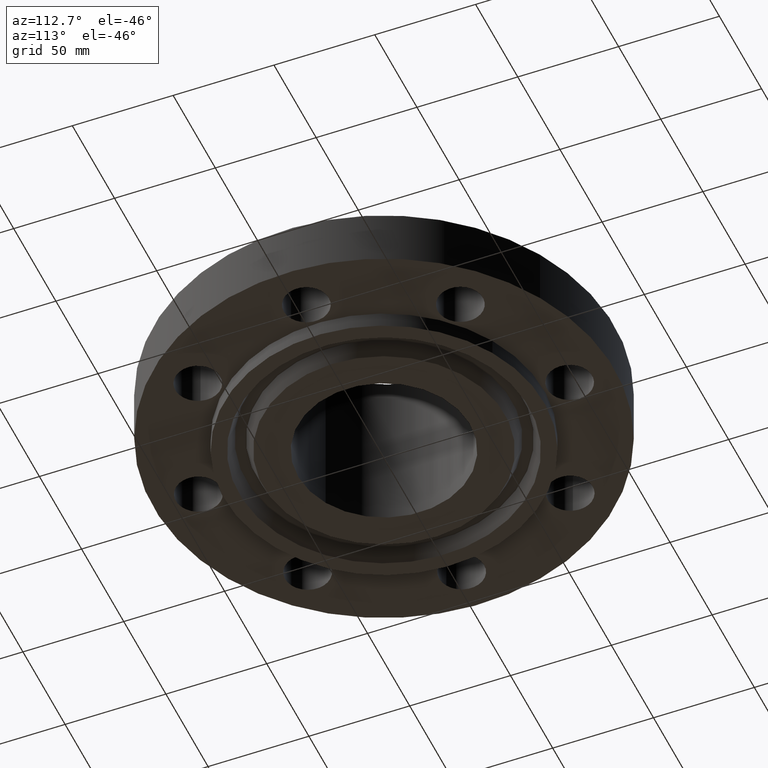
[diagram: clean part render]
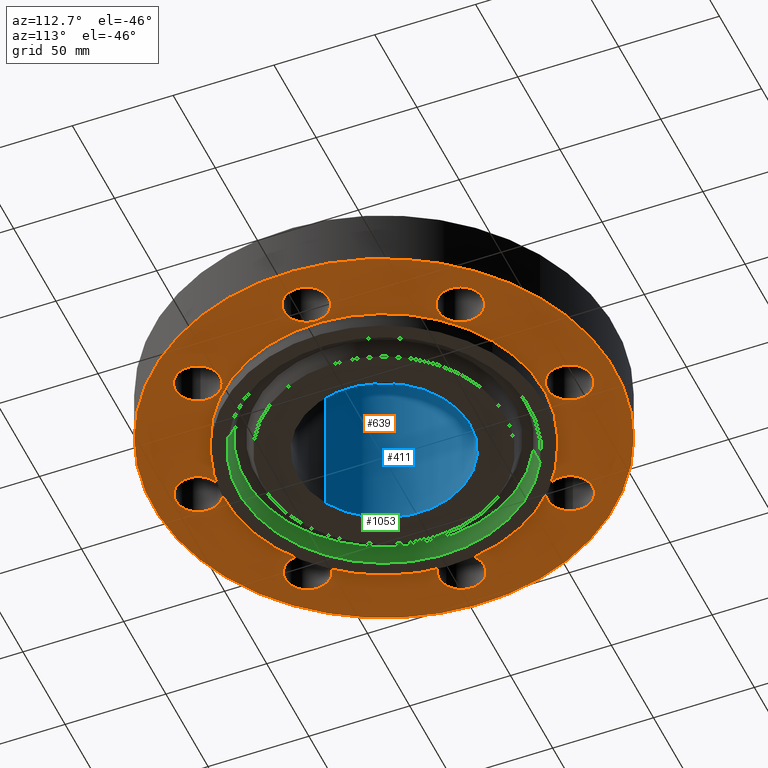
[diagram: same view with three faces highlighted in distinct colors, each labeled with its STEP entity id]
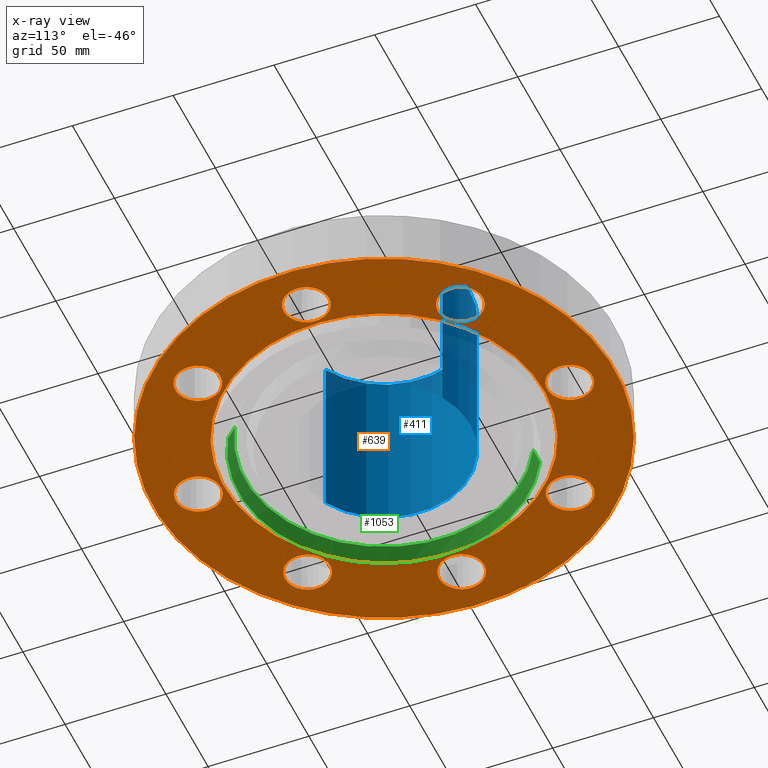
[diagram: x-ray of the same camera — body ghosted, the three highlighted faces saturated]
A machine part, auxiliary view with three faces highlighted in distinct colors.
The next image is the same camera in x-ray (body ghosted, the three faces saturated) — at least one of them is partly hidden behind the body in this view.
Their STEP definitions:

[orange] entity #639 — the highlighted planar face has unit normal (0, 0, -1).
#51=AXIS2_PLACEMENT_3D('Circle Axis2P3D',#49,#50,$) ;
#85=AXIS2_PLACEMENT_3D('Circle Axis2P3D',#83,#84,$) ;
#114=AXIS2_PLACEMENT_3D('Circle Axis2P3D',#112,#113,$) ;
#149=AXIS2_PLACEMENT_3D('Circle Axis2P3D',#147,#148,$) ;
#462=AXIS2_PLACEMENT_3D('Circle Axis2P3D',#460,#461,$) ;
#486=AXIS2_PLACEMENT_3D('Circle Axis2P3D',#484,#485,$) ;
#499=AXIS2_PLACEMENT_3D('Plane Axis2P3D',#496,#497,#498) ;
#515=AXIS2_PLACEMENT_3D('Circle Axis2P3D',#513,#514,$) ;
#524=AXIS2_PLACEMENT_3D('Circle Axis2P3D',#522,#523,$) ;
#533=AXIS2_PLACEMENT_3D('Circle Axis2P3D',#531,#532,$) ;
#542=AXIS2_PLACEMENT_3D('Circle Axis2P3D',#540,#541,$) ;
#551=AXIS2_PLACEMENT_3D('Circle Axis2P3D',#549,#550,$) ;
#560=AXIS2_PLACEMENT_3D('Circle Axis2P3D',#558,#559,$) ;
#569=AXIS2_PLACEMENT_3D('Circle Axis2P3D',#567,#568,$) ;
#578=AXIS2_PLACEMENT_3D('Circle Axis2P3D',#576,#577,$) ;
#587=AXIS2_PLACEMENT_3D('Circle Axis2P3D',#585,#586,$) ;
#596=AXIS2_PLACEMENT_3D('Circle Axis2P3D',#594,#595,$) ;
#605=AXIS2_PLACEMENT_3D('Circle Axis2P3D',#603,#604,$) ;
#614=AXIS2_PLACEMENT_3D('Circle Axis2P3D',#612,#613,$) ;
#623=AXIS2_PLACEMENT_3D('Circle Axis2P3D',#621,#622,$) ;
#632=AXIS2_PLACEMENT_3D('Circle Axis2P3D',#630,#631,$) ;
#44=CARTESIAN_POINT('Vertex',(-0.386136327233,3.835947237,0.)) ;
#49=CARTESIAN_POINT('Axis2P3D Location',(0.,3.62500000001,0.)) ;
#53=CARTESIAN_POINT('Vertex',(0.386136327233,3.41405276303,0.)) ;
#83=CARTESIAN_POINT('Axis2P3D Location',(0.,3.62500000001,0.)) ;
#112=CARTESIAN_POINT('Axis2P3D Location',(0.,0.,2.79741234551E-016)) ;
#116=CARTESIAN_POINT('Vertex',(-2.15741492373,-3.94912152852,2.79741234551E-016)) ;
#118=CARTESIAN_POINT('Vertex',(2.15741492373,3.94912152852,2.79741234551E-016)) ;
#147=CARTESIAN_POINT('Axis2P3D Location',(0.,0.,2.79741234551E-016)) ;
#457=CARTESIAN_POINT('Vertex',(-1.49820480814,-2.74244550592,0.)) ;
#460=CARTESIAN_POINT('Axis2P3D Location',(0.,0.,2.79741234551E-016)) ;
#464=CARTESIAN_POINT('Vertex',(1.49820480814,2.74244550592,0.)) ;
#484=CARTESIAN_POINT('Axis2P3D Location',(0.,0.,2.79741234551E-016)) ;
#496=CARTESIAN_POINT('Axis2P3D Location',(0.,3.12500000001,0.)) ;
#513=CARTESIAN_POINT('Axis2P3D Location',(2.56326208181,2.56326208181,0.)) ;
#517=CARTESIAN_POINT('Vertex',(2.43938468811,2.98546391901,0.)) ;
#519=CARTESIAN_POINT('Vertex',(2.68713947551,2.14106024462,0.)) ;
#522=CARTESIAN_POINT('Axis2P3D Location',(2.56326208181,2.56326208181,0.)) ;
#531=CARTESIAN_POINT('Axis2P3D Location',(3.62500000001,0.,0.)) ;
#535=CARTESIAN_POINT('Vertex',(3.835947237,0.386136327233,0.)) ;
#537=CARTESIAN_POINT('Vertex',(3.41405276303,-0.386136327233,0.)) ;
#540=CARTESIAN_POINT('Axis2P3D Location',(3.62500000001,0.,0.)) ;
#549=CARTESIAN_POINT('Axis2P3D Location',(2.56326208181,-2.56326208181,0.)) ;
#553=CARTESIAN_POINT('Vertex',(2.98546391901,-2.43938468811,0.)) ;
#555=CARTESIAN_POINT('Vertex',(2.14106024462,-2.68713947551,0.)) ;
#558=CARTESIAN_POINT('Axis2P3D Location',(2.56326208181,-2.56326208181,0.)) ;
#567=CARTESIAN_POINT('Axis2P3D Location',(8.74191357973E-016,-3.62500000001,0.)) ;
#571=CARTESIAN_POINT('Vertex',(0.386136327233,-3.835947237,0.)) ;
#573=CARTESIAN_POINT('Vertex',(-0.386136327233,-3.41405276303,0.)) ;
#576=CARTESIAN_POINT('Axis2P3D Location',(1.04902962957E-015,-3.62500000001,0.)) ;
#585=CARTESIAN_POINT('Axis2P3D Location',(-2.56326208181,-2.56326208181,0.)) ;
#589=CARTESIAN_POINT('Vertex',(-2.43938468811,-2.98546391901,0.)) ;
#591=CARTESIAN_POINT('Vertex',(-2.68713947551,-2.14106024462,0.)) ;
#594=CARTESIAN_POINT('Axis2P3D Location',(-2.56326208181,-2.56326208181,0.)) ;
#603=CARTESIAN_POINT('Axis2P3D Location',(-3.62500000001,-5.59482469102E-016,0.)) ;
#607=CARTESIAN_POINT('Vertex',(-3.835947237,-0.386136327233,0.)) ;
#609=CARTESIAN_POINT('Vertex',(-3.41405276303,0.386136327233,0.)) ;
#612=CARTESIAN_POINT('Axis2P3D Location',(-3.62500000001,-1.1189649382E-015,0.)) ;
#621=CARTESIAN_POINT('Axis2P3D Location',(-2.56326208181,2.56326208181,0.)) ;
#625=CARTESIAN_POINT('Vertex',(-2.98546391901,2.43938468811,0.)) ;
#627=CARTESIAN_POINT('Vertex',(-2.14106024462,2.68713947551,0.)) ;
#630=CARTESIAN_POINT('Axis2P3D Location',(-2.56326208181,2.56326208181,0.)) ;
#50=DIRECTION('Axis2P3D Direction',(0.,-0.,-0.0393700787402)) ;
#84=DIRECTION('Axis2P3D Direction',(0.,-0.,-0.0393700787402)) ;
#113=DIRECTION('Axis2P3D Direction',(0.,0.,-0.0393700787402)) ;
#148=DIRECTION('Axis2P3D Direction',(0.,0.,-0.0393700787402)) ;
#461=DIRECTION('Axis2P3D Direction',(0.,0.,-0.0393700787402)) ;
#485=DIRECTION('Axis2P3D Direction',(0.,0.,-0.0393700787402)) ;
#497=DIRECTION('Axis2P3D Direction',(0.,0.,-0.0393700787402)) ;
#498=DIRECTION('Axis2P3D XDirection',(0.0393700787402,0.,0.)) ;
#514=DIRECTION('Axis2P3D Direction',(0.,0.,-0.0393700787402)) ;
#523=DIRECTION('Axis2P3D Direction',(0.,0.,-0.0393700787402)) ;
#532=DIRECTION('Axis2P3D Direction',(0.,0.,-0.0393700787402)) ;
#541=DIRECTION('Axis2P3D Direction',(0.,0.,-0.0393700787402)) ;
#550=DIRECTION('Axis2P3D Direction',(0.,0.,-0.0393700787402)) ;
#559=DIRECTION('Axis2P3D Direction',(0.,0.,-0.0393700787402)) ;
#568=DIRECTION('Axis2P3D Direction',(0.,0.,-0.0393700787402)) ;
#577=DIRECTION('Axis2P3D Direction',(0.,0.,-0.0393700787402)) ;
#586=DIRECTION('Axis2P3D Direction',(0.,0.,-0.0393700787402)) ;
#595=DIRECTION('Axis2P3D Direction',(0.,0.,-0.0393700787402)) ;
#604=DIRECTION('Axis2P3D Direction',(0.,0.,-0.0393700787402)) ;
#613=DIRECTION('Axis2P3D Direction',(0.,0.,-0.0393700787402)) ;
#622=DIRECTION('Axis2P3D Direction',(0.,0.,-0.0393700787402)) ;
#631=DIRECTION('Axis2P3D Direction',(0.,0.,-0.0393700787402)) ;
#502=ORIENTED_EDGE('',*,*,#120,.T.) ;
#503=ORIENTED_EDGE('',*,*,#151,.T.) ;
#506=ORIENTED_EDGE('',*,*,#87,.F.) ;
#507=ORIENTED_EDGE('',*,*,#55,.F.) ;
#510=ORIENTED_EDGE('',*,*,#488,.F.) ;
#511=ORIENTED_EDGE('',*,*,#466,.F.) ;
#528=ORIENTED_EDGE('',*,*,#521,.F.) ;
#529=ORIENTED_EDGE('',*,*,#526,.F.) ;
#546=ORIENTED_EDGE('',*,*,#539,.F.) ;
#547=ORIENTED_EDGE('',*,*,#544,.F.) ;
#564=ORIENTED_EDGE('',*,*,#557,.F.) ;
#565=ORIENTED_EDGE('',*,*,#562,.F.) ;
#582=ORIENTED_EDGE('',*,*,#575,.F.) ;
#583=ORIENTED_EDGE('',*,*,#580,.F.) ;
#600=ORIENTED_EDGE('',*,*,#593,.F.) ;
#601=ORIENTED_EDGE('',*,*,#598,.F.) ;
#618=ORIENTED_EDGE('',*,*,#611,.F.) ;
#619=ORIENTED_EDGE('',*,*,#616,.F.) ;
#636=ORIENTED_EDGE('',*,*,#629,.F.) ;
#637=ORIENTED_EDGE('',*,*,#634,.F.) ;
#508=FACE_BOUND('',#505,.T.) ;
#512=FACE_BOUND('',#509,.T.) ;
#530=FACE_BOUND('',#527,.T.) ;
#548=FACE_BOUND('',#545,.T.) ;
#566=FACE_BOUND('',#563,.T.) ;
#584=FACE_BOUND('',#581,.T.) ;
#602=FACE_BOUND('',#599,.T.) ;
#620=FACE_BOUND('',#617,.T.) ;
#638=FACE_BOUND('',#635,.T.) ;
#639=ADVANCED_FACE('PartBody',(#504,#508,#512,#530,#548,#566,#584,#602,#620,#638),#500,.T.) ;
#52=CIRCLE('generated circle',#51,0.440000000002) ;
#86=CIRCLE('generated circle',#85,0.440000000002) ;
#115=CIRCLE('generated circle',#114,4.50000000002) ;
#150=CIRCLE('generated circle',#149,4.50000000002) ;
#463=CIRCLE('generated circle',#462,3.12500000001) ;
#487=CIRCLE('generated circle',#486,3.12500000001) ;
#516=CIRCLE('generated circle',#515,0.440000000002) ;
#525=CIRCLE('generated circle',#524,0.440000000002) ;
#534=CIRCLE('generated circle',#533,0.440000000002) ;
#543=CIRCLE('generated circle',#542,0.440000000002) ;
#552=CIRCLE('generated circle',#551,0.440000000002) ;
#561=CIRCLE('generated circle',#560,0.440000000002) ;
#570=CIRCLE('generated circle',#569,0.440000000002) ;
#579=CIRCLE('generated circle',#578,0.440000000002) ;
#588=CIRCLE('generated circle',#587,0.440000000002) ;
#597=CIRCLE('generated circle',#596,0.440000000002) ;
#606=CIRCLE('generated circle',#605,0.440000000002) ;
#615=CIRCLE('generated circle',#614,0.440000000002) ;
#624=CIRCLE('generated circle',#623,0.440000000002) ;
#633=CIRCLE('generated circle',#632,0.440000000002) ;
#55=EDGE_CURVE('',#45,#54,#52,.T.) ;
#87=EDGE_CURVE('',#54,#45,#86,.T.) ;
#120=EDGE_CURVE('',#117,#119,#115,.T.) ;
#151=EDGE_CURVE('',#119,#117,#150,.T.) ;
#466=EDGE_CURVE('',#458,#465,#463,.T.) ;
#488=EDGE_CURVE('',#465,#458,#487,.T.) ;
#521=EDGE_CURVE('',#518,#520,#516,.T.) ;
#526=EDGE_CURVE('',#520,#518,#525,.T.) ;
#539=EDGE_CURVE('',#536,#538,#534,.T.) ;
#544=EDGE_CURVE('',#538,#536,#543,.T.) ;
#557=EDGE_CURVE('',#554,#556,#552,.T.) ;
#562=EDGE_CURVE('',#556,#554,#561,.T.) ;
#575=EDGE_CURVE('',#572,#574,#570,.T.) ;
#580=EDGE_CURVE('',#574,#572,#579,.T.) ;
#593=EDGE_CURVE('',#590,#592,#588,.T.) ;
#598=EDGE_CURVE('',#592,#590,#597,.T.) ;
#611=EDGE_CURVE('',#608,#610,#606,.T.) ;
#616=EDGE_CURVE('',#610,#608,#615,.T.) ;
#629=EDGE_CURVE('',#626,#628,#624,.T.) ;
#634=EDGE_CURVE('',#628,#626,#633,.T.) ;
#501=EDGE_LOOP('',(#502,#503)) ;
#505=EDGE_LOOP('',(#506,#507)) ;
#509=EDGE_LOOP('',(#510,#511)) ;
#527=EDGE_LOOP('',(#528,#529)) ;
#545=EDGE_LOOP('',(#546,#547)) ;
#563=EDGE_LOOP('',(#564,#565)) ;
#581=EDGE_LOOP('',(#582,#583)) ;
#599=EDGE_LOOP('',(#600,#601)) ;
#617=EDGE_LOOP('',(#618,#619)) ;
#635=EDGE_LOOP('',(#636,#637)) ;
#504=FACE_OUTER_BOUND('',#501,.T.) ;
#500=PLANE('',#499) ;
#45=VERTEX_POINT('',#44) ;
#54=VERTEX_POINT('',#53) ;
#117=VERTEX_POINT('',#116) ;
#119=VERTEX_POINT('',#118) ;
#458=VERTEX_POINT('',#457) ;
#465=VERTEX_POINT('',#464) ;
#518=VERTEX_POINT('',#517) ;
#520=VERTEX_POINT('',#519) ;
#536=VERTEX_POINT('',#535) ;
#538=VERTEX_POINT('',#537) ;
#554=VERTEX_POINT('',#553) ;
#556=VERTEX_POINT('',#555) ;
#572=VERTEX_POINT('',#571) ;
#574=VERTEX_POINT('',#573) ;
#590=VERTEX_POINT('',#589) ;
#592=VERTEX_POINT('',#591) ;
#608=VERTEX_POINT('',#607) ;
#610=VERTEX_POINT('',#609) ;
#626=VERTEX_POINT('',#625) ;
#628=VERTEX_POINT('',#627) ;

[blue] entity #411 — the highlighted cylindrical surface (partial cylindrical patch) has radius 42.7228 mm, axis along (0, 0, -1).
#358=AXIS2_PLACEMENT_3D('Cylinder Axis2P3D',#355,#356,#357) ;
#397=AXIS2_PLACEMENT_3D('Circle Axis2P3D',#395,#396,$) ;
#402=AXIS2_PLACEMENT_3D('Circle Axis2P3D',#400,#401,$) ;
#355=CARTESIAN_POINT('Axis2P3D Location',(0.,0.,1.40850000001)) ;
#364=CARTESIAN_POINT('Vertex',(0.806393755935,1.47609386911,3.13000000001)) ;
#366=CARTESIAN_POINT('Vertex',(-0.806393755935,-1.47609386911,3.13000000001)) ;
#369=CARTESIAN_POINT('Line Origine',(0.806393755935,1.47609386911,1.40850000001)) ;
#373=CARTESIAN_POINT('Vertex',(0.806393755935,1.47609386911,-0.313000000001)) ;
#380=CARTESIAN_POINT('Vertex',(-0.806393755935,-1.47609386911,-0.313000000001)) ;
#383=CARTESIAN_POINT('Line Origine',(-0.806393755935,-1.47609386911,1.40850000001)) ;
#395=CARTESIAN_POINT('Axis2P3D Location',(0.,0.,3.13000000001)) ;
#400=CARTESIAN_POINT('Axis2P3D Location',(0.,0.,-0.313000000001)) ;
#356=DIRECTION('Axis2P3D Direction',(0.,0.,-0.0393700787402)) ;
#357=DIRECTION('Axis2P3D XDirection',(-0.0188750212049,-0.0345504945626,0.)) ;
#370=DIRECTION('Vector Direction',(0.,0.,-0.0393700787402)) ;
#384=DIRECTION('Vector Direction',(0.,0.,-0.0393700787402)) ;
#396=DIRECTION('Axis2P3D Direction',(0.,0.,-0.0393700787402)) ;
#401=DIRECTION('Axis2P3D Direction',(0.,0.,-0.0393700787402)) ;
#371=VECTOR('Line Direction',#370,0.0393700787402) ;
#385=VECTOR('Line Direction',#384,0.0393700787402) ;
#406=ORIENTED_EDGE('',*,*,#399,.F.) ;
#407=ORIENTED_EDGE('',*,*,#387,.T.) ;
#408=ORIENTED_EDGE('',*,*,#404,.T.) ;
#409=ORIENTED_EDGE('',*,*,#375,.F.) ;
#411=ADVANCED_FACE('PartBody',(#410),#359,.F.) ;
#398=CIRCLE('generated circle',#397,1.68200000001) ;
#403=CIRCLE('generated circle',#402,1.68200000001) ;
#359=CYLINDRICAL_SURFACE('generated cylinder',#358,1.68200000001) ;
#375=EDGE_CURVE('',#365,#374,#372,.T.) ;
#387=EDGE_CURVE('',#367,#381,#386,.T.) ;
#399=EDGE_CURVE('',#367,#365,#398,.T.) ;
#404=EDGE_CURVE('',#381,#374,#403,.T.) ;
#405=EDGE_LOOP('',(#406,#407,#408,#409)) ;
#410=FACE_OUTER_BOUND('',#405,.T.) ;
#372=LINE('Line',#369,#371) ;
#386=LINE('Line',#383,#385) ;
#365=VERTEX_POINT('',#364) ;
#367=VERTEX_POINT('',#366) ;
#374=VERTEX_POINT('',#373) ;
#381=VERTEX_POINT('',#380) ;

[green] entity #1053 — the highlighted conical surface has half-angle 23 deg.
#952=AXIS2_PLACEMENT_3D('Circle Axis2P3D',#950,#951,$) ;
#999=AXIS2_PLACEMENT_3D('Circle Axis2P3D',#997,#998,$) ;
#1035=AXIS2_PLACEMENT_3D('Cone Axis2P3D',#1032,#1033,#1034) ;
#950=CARTESIAN_POINT('Axis2P3D Location',(-6.99353086378E-016,-8.39223703654E-016,-0.313000000001)) ;
#954=CARTESIAN_POINT('Vertex',(1.35605513595,-2.48224227632,-0.313000000001)) ;
#956=CARTESIAN_POINT('Vertex',(-1.35605513595,2.48224227632,-0.313000000001)) ;
#997=CARTESIAN_POINT('Axis2P3D Location',(0.,0.,-0.0188873350169)) ;
#1001=CARTESIAN_POINT('Vertex',(-1.29620201235,2.37268186847,-0.0188873350169)) ;
#1003=CARTESIAN_POINT('Vertex',(1.29620201235,-2.37268186847,-0.0188873350169)) ;
#1032=CARTESIAN_POINT('Axis2P3D Location',(0.,0.,-0.0188873350169)) ;
#1037=CARTESIAN_POINT('Line Origine',(-1.32612857415,2.42746207239,-0.165943667509)) ;
#1042=CARTESIAN_POINT('Line Origine',(1.32612857415,-2.42746207239,-0.165943667509)) ;
#951=DIRECTION('Axis2P3D Direction',(0.,0.,-0.0393700787402)) ;
#998=DIRECTION('Axis2P3D Direction',(0.,0.,0.0393700787402)) ;
#1033=DIRECTION('Axis2P3D Direction',(-0.,-0.,-0.0393700787402)) ;
#1034=DIRECTION('Axis2P3D XDirection',(-0.0188750212049,0.0345504945626,0.)) ;
#1038=DIRECTION('Vector Direction',(-0.00737505833565,0.0134999537303,-0.0362403485611)) ;
#1043=DIRECTION('Vector Direction',(0.00737505833565,-0.0134999537303,-0.0362403485611)) ;
#1039=VECTOR('Line Direction',#1038,0.0393700787402) ;
#1044=VECTOR('Line Direction',#1043,0.0393700787402) ;
#1048=ORIENTED_EDGE('',*,*,#958,.T.) ;
#1049=ORIENTED_EDGE('',*,*,#1041,.T.) ;
#1050=ORIENTED_EDGE('',*,*,#1005,.T.) ;
#1051=ORIENTED_EDGE('',*,*,#1046,.F.) ;
#1053=ADVANCED_FACE('PartBody',(#1052),#1036,.F.) ;
#953=CIRCLE('generated circle',#952,2.82850000001) ;
#1000=CIRCLE('generated circle',#999,2.7036565806) ;
#1036=CONICAL_SURFACE('Cone',#1035,2.7036565806,0.401425727959) ;
#958=EDGE_CURVE('',#955,#957,#953,.T.) ;
#1005=EDGE_CURVE('',#1002,#1004,#1000,.T.) ;
#1041=EDGE_CURVE('',#957,#1002,#1040,.F.) ;
#1046=EDGE_CURVE('',#955,#1004,#1045,.F.) ;
#1047=EDGE_LOOP('',(#1048,#1049,#1050,#1051)) ;
#1052=FACE_OUTER_BOUND('',#1047,.T.) ;
#1040=LINE('Line',#1037,#1039) ;
#1045=LINE('Line',#1042,#1044) ;
#955=VERTEX_POINT('',#954) ;
#957=VERTEX_POINT('',#956) ;
#1002=VERTEX_POINT('',#1001) ;
#1004=VERTEX_POINT('',#1003) ;